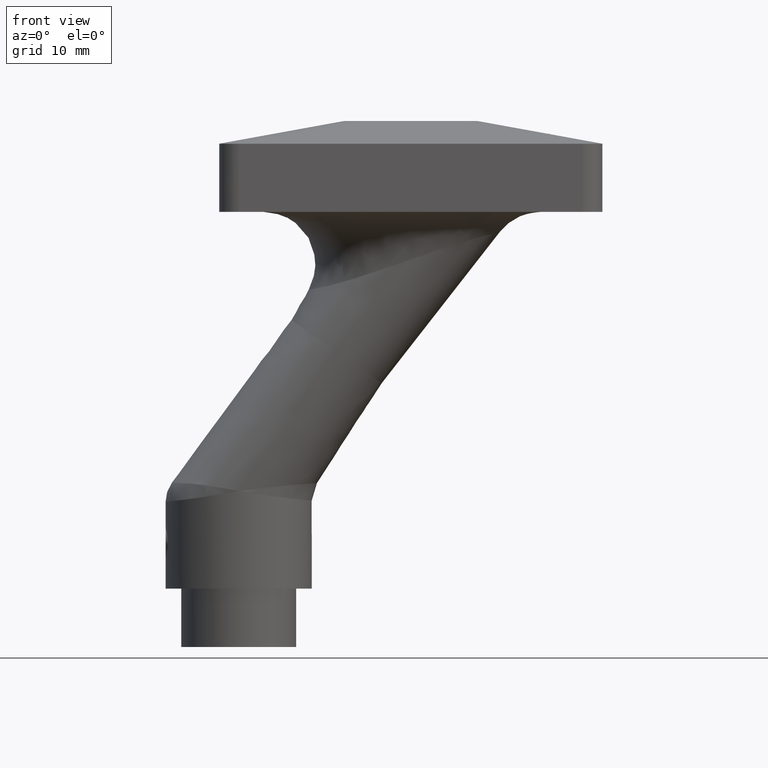
[diagram: clean part render]
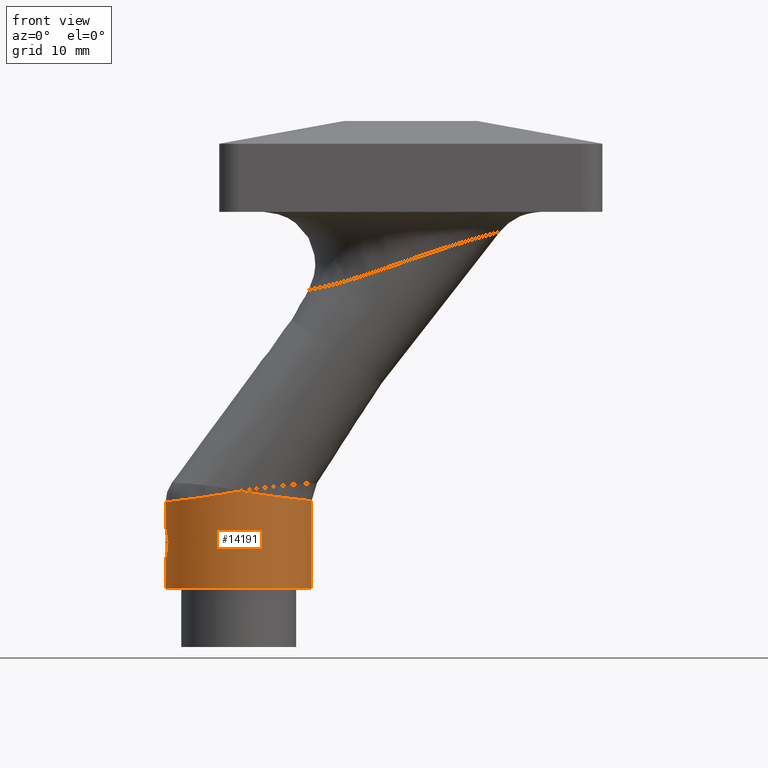
[diagram: same view with one face highlighted and labeled with its STEP entity id]
A machine part, front view. The second image highlights one B-rep face of the part: STEP entity #14191.
In plain terms, the highlighted cylindrical surface (bore or boss wall) has radius 11.25 mm, axis along (0, 0, -1).
Its self-contained STEP definition (entity closure, byte-faithful):
#56 = CARTESIAN_POINT ( 'NONE',  ( -37.68075659520788889, 1.253745034708664052, -48.83095398390207720 ) ) ;
#230 = CARTESIAN_POINT ( 'NONE',  ( -26.58799601209620889, -11.25002030026135103, -43.01586588406971856 ) ) ;
#253 = CARTESIAN_POINT ( 'NONE',  ( -25.58216729560727742, 11.21397373183285495, -43.13660839719678108 ) ) ;
#359 = CARTESIAN_POINT ( 'NONE',  ( -37.64657759560685690, -1.539577063958007974, -49.00371243763353846 ) ) ;
#366 = CARTESIAN_POINT ( 'NONE',  ( -23.59614004035501367, -10.89316419302977401, -43.42886566051410568 ) ) ;
#420 = CARTESIAN_POINT ( 'NONE',  ( -37.57326254379513841, -1.988444917141694468, -49.47589345661070581 ) ) ;
#425 = CARTESIAN_POINT ( 'NONE',  ( -15.62026678717410810, 2.957028310466824461, -44.43805212797568771 ) ) ;
#463 = CARTESIAN_POINT ( 'NONE',  ( -36.60459673414103321, 5.000754288888439980, -44.51267905802065172 ) ) ;
#479 = CARTESIAN_POINT ( 'NONE',  ( -15.24926391848091711, -0.7351613917972392720, -44.47769005091761585 ) ) ;
#515 = CARTESIAN_POINT ( 'NONE',  ( -30.45335659545865070, 10.53881190209387952, -43.67843766857333065 ) ) ;
#538 = CARTESIAN_POINT ( 'NONE',  ( -22.91557309642571028, 10.68927373741837883, -43.52476940037698228 ) ) ;
#577 = CARTESIAN_POINT ( 'NONE',  ( -34.93931663775671836, -7.475553840231445868, -44.31822588875963476 ) ) ;
#687 = VERTEX_POINT ( 'NONE', #6681 ) ;
#690 = CARTESIAN_POINT ( 'NONE',  ( -33.87595355894849547, -8.502611458324700777, -44.18142745480246703 ) ) ;
#1114 = CARTESIAN_POINT ( 'NONE',  ( -26.50000000000000711, 0.000000000000000000, -58.00000000000000000 ) ) ;
#1178 = B_SPLINE_CURVE_WITH_KNOTS ( 'NONE', 3,
 ( #11539, #14213, #15501, #5770, #7249, #253, #11483, #12869, #14276, #538, #4830, #11596, #11762, #4599, #17325, #14611, #6235, #14500, #3353, #10177, #3176, #425, #6176, #10401, #3295, #10345, #479, #12992, #8985, #15964, #1766, #3234, #15854, #17384, #14388, #10228, #16021, #7650, #1999, #6009, #11818, #7592, #17443, #366, #1825, #11654, #1942, #8921, #7481, #15796, #6114, #3413, #8869 ),
 .UNSPECIFIED., .F., .F.,
 ( 4, 2, 1, 2, 2, 2, 2, 2, 2, 2, 2, 2, 2, 2, 2, 2, 2, 2, 2, 2, 2, 2, 2, 2, 2, 2, 4 ),
 ( -3.937414685807313284E-05, 0.0002351514313479150810, 0.0005096770095539032881, 0.001058728165965872221, 0.002156830478789810955, 0.004353035104437684086, 0.006549239730085557216, 0.007647342042909500287, 0.008745444355733442490, 0.01094164898138131649, 0.01313785360702918702, 0.01533405823267705928, 0.01643216054550099281, 0.01753026285832492981, 0.01972646748397280034, 0.02082456979679673040, 0.02192267210962066393, 0.02411887673526854139, 0.02631508136091641192, 0.02741318367374035239, 0.02851128598656428939, 0.03070749061221216339, 0.03290369523786003392, 0.03400179755068397786, 0.03455084870709595329, 0.03482537428530194101, 0.03509989986350793567 ),
 .UNSPECIFIED. ) ;
#1240 = ORIENTED_EDGE ( 'NONE', *, *, #4153, .F. ) ;
#1348 = CARTESIAN_POINT ( 'NONE',  ( -37.48674006475736320, 2.419735138580955347, -51.64936250849032007 ) ) ;
#1443 = FACE_OUTER_BOUND ( 'NONE', #6701, .T. ) ;
#1610 = CARTESIAN_POINT ( 'NONE',  ( -26.50000000000000711, 0.000000000000000000, -43.00000000000000000 ) ) ;
#1630 = CARTESIAN_POINT ( 'NONE',  ( -26.86401790152639180, -11.24448243017374693, -43.06437334906862446 ) ) ;
#1761 = CARTESIAN_POINT ( 'NONE',  ( -37.47238190204512165, -2.484028532149479496, -50.67391850911302953 ) ) ;
#1766 = CARTESIAN_POINT ( 'NONE',  ( -15.84169776112975825, -3.619465920377436863, -44.41624822221944413 ) ) ;
#1825 = CARTESIAN_POINT ( 'NONE',  ( -24.66822037685117408, -11.10584601066486599, -43.27231993850022462 ) ) ;
#1861 = CARTESIAN_POINT ( 'NONE',  ( -33.00587049424659369, -9.185299329459111206, -44.06338679204787923 ) ) ;
#1920 = CARTESIAN_POINT ( 'NONE',  ( -37.74957052561062909, -0.3862719649340466965, -44.63703151514683043 ) ) ;
#1942 = CARTESIAN_POINT ( 'NONE',  ( -25.57707192295873710, -11.21357904312848319, -43.13775037827159053 ) ) ;
#1982 = CARTESIAN_POINT ( 'NONE',  ( -35.40791420553161117, -6.910563225214472638, -44.37499185345798480 ) ) ;
#1999 = CARTESIAN_POINT ( 'NONE',  ( -19.67232502967480201, -8.948819689654499143, -43.96513494312738146 ) ) ;
#2033 = CARTESIAN_POINT ( 'NONE',  ( -37.67794013827155908, 1.469462512782714336, -44.62940878144023316 ) ) ;
#2086 = EDGE_CURVE ( 'NONE', #687, #687, #15422, .T. ) ;
#2731 = CARTESIAN_POINT ( 'NONE',  ( -37.57333972233147534, 1.987988175784518807, -52.52457346111491887 ) ) ;
#3052 = CARTESIAN_POINT ( 'NONE',  ( -37.52392198959429948, -2.244952111562316333, -52.11230619515626472 ) ) ;
#3176 = CARTESIAN_POINT ( 'NONE',  ( -15.83658169739675792, 3.660172870090232955, -44.41510499741705331 ) ) ;
#3215 = CARTESIAN_POINT ( 'NONE',  ( -34.69707389930479025, 7.713972579947069974, -44.28579643036877656 ) ) ;
#3230 = CARTESIAN_POINT ( 'NONE',  ( -37.59177106496908749, -1.883776008447558326, -49.34840884542255424 ) ) ;
#3234 = CARTESIAN_POINT ( 'NONE',  ( -15.96786451558549658, -3.971748677838647712, -44.40282091487250682 ) ) ;
#3295 = CARTESIAN_POINT ( 'NONE',  ( -15.26926728597367244, 0.7560250582683490927, -44.47521263869046493 ) ) ;
#3333 = CARTESIAN_POINT ( 'NONE',  ( -32.09102877642342122, -9.789647381795036907, -43.93355108577264190 ) ) ;
#3353 = CARTESIAN_POINT ( 'NONE',  ( -16.76191516113042823, 5.681018418691528460, -44.31355568017183089 ) ) ;
#3390 = CARTESIAN_POINT ( 'NONE',  ( -35.64001099715863319, 6.569556731911585068, -44.40107694031379992 ) ) ;
#3413 = CARTESIAN_POINT ( 'NONE',  ( -26.40694965745311151, -11.24997913212934897, -43.01360129326869242 ) ) ;
#3450 = CARTESIAN_POINT ( 'NONE',  ( -33.34789408235698005, 8.956460699475433884, -44.11014418023524541 ) ) ;
#3459 = VERTEX_POINT ( 'NONE', #6076 ) ;
#4099 = CARTESIAN_POINT ( 'NONE',  ( -37.75000000000001421, -2.303929616531696922E-16, -48.50000000000001421 ) ) ;
#4104 = ORIENTED_EDGE ( 'NONE', *, *, #16789, .T. ) ;
#4153 = EDGE_CURVE ( 'NONE', #11260, #11260, #12971, .T. ) ;
#4292 = CARTESIAN_POINT ( 'NONE',  ( -37.64679644970392047, 1.526424675689793675, -52.98657497506663816 ) ) ;
#4356 = CARTESIAN_POINT ( 'NONE',  ( -37.53937646106689385, 2.168667089266101300, -52.25431426737048213 ) ) ;
#4540 = CARTESIAN_POINT ( 'NONE',  ( -37.69637680275558722, -1.107464029917603288, -53.24723807940604559 ) ) ;
#4599 = CARTESIAN_POINT ( 'NONE',  ( -19.68881417153165359, 8.961364230379690099, -43.96034986496109553 ) ) ;
#4642 = CARTESIAN_POINT ( 'NONE',  ( -37.73059063981987293, -0.7581254405964665821, -44.63507789050913033 ) ) ;
#4653 = CARTESIAN_POINT ( 'NONE',  ( -37.68309954846475307, -1.261703566742904625, -48.81728812919127591 ) ) ;
#4688 = CARTESIAN_POINT ( 'NONE',  ( -36.22100976958144258, -5.674744764149395770, -44.46997190512419706 ) ) ;
#4746 = CARTESIAN_POINT ( 'NONE',  ( -37.15717827437402576, 3.622836015352560946, -44.57353265851101298 ) ) ;
#4805 = CARTESIAN_POINT ( 'NONE',  ( -35.41717406239238386, 6.869066732656741614, -44.37445044623481039 ) ) ;
#4830 = CARTESIAN_POINT ( 'NONE',  ( -21.54799188290501633, 10.12848976248457689, -43.71490185306364396 ) ) ;
#5261 = ORIENTED_EDGE ( 'NONE', *, *, #14512, .T. ) ;
#5515 = CARTESIAN_POINT ( 'NONE',  ( -37.53672650785753717, 2.183904806605754256, -49.74044142872117646 ) ) ;
#5572 = CARTESIAN_POINT ( 'NONE',  ( -37.68047795284339685, 1.256167237142044923, -53.16760150729938061 ) ) ;
#5702 = CARTESIAN_POINT ( 'NONE',  ( -37.73224575438071327, 0.6519598570571407681, -53.41905625175661498 ) ) ;
#5762 = CARTESIAN_POINT ( 'NONE',  ( -37.62847907448755791, 1.653175029519442285, -49.11760231332894477 ) ) ;
#5770 = CARTESIAN_POINT ( 'NONE',  ( -26.13006095518148442, 11.24429138543998619, -43.05498504087139366 ) ) ;
#5823 = CARTESIAN_POINT ( 'NONE',  ( -37.75000000000000711, -0.1657161672031449984, -48.50000000000001421 ) ) ;
#5969 = DIRECTION ( 'NONE',  ( -1.000000000000000000, 0.000000000000000000, 0.000000000000000000 ) ) ;
#6009 = CARTESIAN_POINT ( 'NONE',  ( -19.96763417237547600, -9.166489074497082612, -43.92704812923691549 ) ) ;
#6045 = CARTESIAN_POINT ( 'NONE',  ( -28.32748180642096969, 11.10666148670805242, -43.32093914003816337 ) ) ;
#6059 = CARTESIAN_POINT ( 'NONE',  ( -37.48419476004180950, -2.434466992371082661, -51.65689472750188571 ) ) ;
#6064 = ORIENTED_EDGE ( 'NONE', *, *, #2086, .F. ) ;
#6076 = CARTESIAN_POINT ( 'NONE',  ( -26.49744186247852085, -11.24999970915255787, -43.00000000000000000 ) ) ;
#6097 = CARTESIAN_POINT ( 'NONE',  ( -32.11366058624965802, 9.777456542824152663, -43.93520878460281409 ) ) ;
#6114 = CARTESIAN_POINT ( 'NONE',  ( -26.31372860708166783, -11.24883578088096492, -43.02760072011336234 ) ) ;
#6158 = CARTESIAN_POINT ( 'NONE',  ( -33.91618264083517431, 8.491307846093590683, -44.18592636950976527 ) ) ;
#6176 = CARTESIAN_POINT ( 'NONE',  ( -15.39973109540211027, 1.866563164859262880, -44.46139367190538394 ) ) ;
#6235 = CARTESIAN_POINT ( 'NONE',  ( -18.05286347208557629, 7.466853264604533358, -44.16377745652111741 ) ) ;
#6270 = CARTESIAN_POINT ( 'NONE',  ( -37.60003416204072124, -1.868261779885759699, -44.62143648069104529 ) ) ;
#6455 = CYLINDRICAL_SURFACE ( 'NONE', #9000, 11.25000000000001421 ) ;
#6492 = CARTESIAN_POINT ( 'NONE',  ( -26.49740553563398748, 11.24999970083354839, -43.00000000000000711 ) ) ;
#6681 = CARTESIAN_POINT ( 'NONE',  ( -37.75000000000002132, 0.000000000000000000, -48.50000000000000711 ) ) ;
#6701 = EDGE_LOOP ( 'NONE', ( #1240 ) ) ;
#6831 = B_SPLINE_CURVE_WITH_KNOTS ( 'NONE', 3,
 ( #8625, #230, #15716, #1630, #16057, #15946, #9081, #8902, #11742, #8849, #13204, #13028, #7570, #3333, #1861, #13086, #690, #10327, #577, #1982, #7518, #4688, #13145, #15832, #14480, #7460, #6270, #15890, #4642, #1920, #7690, #2033, #16002, #17302, #4746, #11797, #463, #17239, #3390, #4805, #14536, #3215, #6158, #3450, #6097, #17484, #515, #14424, #14651, #10505, #6045, #17361, #10268, #11688, #8964, #11853, #10378 ),
 .UNSPECIFIED., .F., .F.,
 ( 4, 2, 1, 2, 2, 2, 2, 2, 2, 2, 2, 2, 2, 2, 2, 2, 2, 2, 2, 2, 2, 2, 2, 2, 2, 2, 2, 2, 4 ),
 ( -2.587528950332370039E-05, 0.0002499252393821553911, 0.0005257257682676344046, 0.001077326826038596010, 0.002180528941580519870, 0.003283731057122443297, 0.004386933172664365423, 0.006593337403748213144, 0.007696539519290126162, 0.008799741634832039180, 0.01100614586591584960, 0.01210934798145775482, 0.01321255009699965656, 0.01541895432808345658, 0.01652215644362535832, 0.01762535855916726180, 0.01983176279025106181, 0.02093496490579296182, 0.02203816702133486530, 0.02424457125241866878, 0.02534777336796056532, 0.02645097548350245839, 0.02865737971458624106, 0.03086378394567002373, 0.03196698606121191333, 0.03307018817675379946, 0.03417339029229569253, 0.03472499135006662518, 0.03527659240783756478 ),
 .UNSPECIFIED. ) ;
#6930 = CARTESIAN_POINT ( 'NONE',  ( -37.75000000000002132, 0.1657161672031357003, -48.50000000000001421 ) ) ;
#6989 = CARTESIAN_POINT ( 'NONE',  ( -37.59173650917570342, 1.884058541853640190, -52.65143626716205461 ) ) ;
#7016 = DIRECTION ( 'NONE',  ( 0.000000000000000000, 0.000000000000000000, -1.000000000000000000 ) ) ;
#7115 = CARTESIAN_POINT ( 'NONE',  ( -37.74998490963172770, 0.1644691035418998637, -53.49993209333716493 ) ) ;
#7249 = CARTESIAN_POINT ( 'NONE',  ( -25.85513723581858869, 11.23411476709549284, -43.09603706259993317 ) ) ;
#7307 = CARTESIAN_POINT ( 'NONE',  ( -37.59213666496045647, -1.881659315131578580, -52.65406099378084548 ) ) ;
#7421 = CARTESIAN_POINT ( 'NONE',  ( -37.73493316287531485, -0.6558179420409238070, -53.43436338274979391 ) ) ;
#7460 = CARTESIAN_POINT ( 'NONE',  ( -37.37827727940891975, -2.963144501860617730, -44.59798481391889169 ) ) ;
#7477 = CARTESIAN_POINT ( 'NONE',  ( -37.52351656771428168, -2.246924068779898143, -49.89183796041853469 ) ) ;
#7481 = CARTESIAN_POINT ( 'NONE',  ( -26.03720196527531527, -11.24085519363162966, -43.06904394251615287 ) ) ;
#7518 = CARTESIAN_POINT ( 'NONE',  ( -36.02757933009449687, -5.993647637662388838, -44.44772518979065978 ) ) ;
#7570 = CARTESIAN_POINT ( 'NONE',  ( -31.44610540244175567, -10.13110290342210718, -43.83722442322081747 ) ) ;
#7592 = CARTESIAN_POINT ( 'NONE',  ( -21.52919732205071313, -10.11931277237178506, -43.71955857782110400 ) ) ;
#7650 = CARTESIAN_POINT ( 'NONE',  ( -19.10087774993497689, -8.482423549136516527, -44.03763272104424686 ) ) ;
#7690 = CARTESIAN_POINT ( 'NONE',  ( -37.75083738379053244, 0.7343911286410290673, -44.63706600273000902 ) ) ;
#8190 = EDGE_LOOP ( 'NONE', ( #6064 ) ) ;
#8271 = AXIS2_PLACEMENT_3D ( 'NONE', #1114, #15518, #16801 ) ;
#8333 = CARTESIAN_POINT ( 'NONE',  ( -37.49745845293843871, 2.371176001329940330, -50.19129339657925470 ) ) ;
#8397 = CARTESIAN_POINT ( 'NONE',  ( -37.46868282718008203, 2.500099407467267998, -51.16208300218305993 ) ) ;
#8451 = CARTESIAN_POINT ( 'NONE',  ( -37.74634296766220132, 0.3285616872426019297, -48.51631321845164280 ) ) ;
#8625 = CARTESIAN_POINT ( 'NONE',  ( -26.49744186247852085, -11.24999970915255787, -43.00000000000000000 ) ) ;
#8637 = CARTESIAN_POINT ( 'NONE',  ( -37.49727420592472527, -2.372034006762276270, -50.19368396543599431 ) ) ;
#8692 = CARTESIAN_POINT ( 'NONE',  ( -37.46868186375813536, -2.500103634466104285, -50.83656737869828390 ) ) ;
#8753 = CARTESIAN_POINT ( 'NONE',  ( -37.73226959465379338, -0.6516663803913396169, -48.58083251576626793 ) ) ;
#8849 = CARTESIAN_POINT ( 'NONE',  ( -29.37635119099201120, -10.88221448524924106, -43.50227812460062893 ) ) ;
#8869 = CARTESIAN_POINT ( 'NONE',  ( -26.49744186247852085, -11.24999970915255787, -43.00000000000000000 ) ) ;
#8884 = FACE_OUTER_BOUND ( 'NONE', #13273, .T. ) ;
#8902 = CARTESIAN_POINT ( 'NONE',  ( -28.31184504468579632, -11.10905894770588809, -43.31921484258081279 ) ) ;
#8921 = CARTESIAN_POINT ( 'NONE',  ( -25.76083038512884116, -11.22720616631809243, -43.11036252621535425 ) ) ;
#8964 = CARTESIAN_POINT ( 'NONE',  ( -26.86468316865505201, 11.24558658789049481, -43.06425235065912460 ) ) ;
#8985 = CARTESIAN_POINT ( 'NONE',  ( -15.53710546863395336, -2.552028083967936123, -44.44823484829729665 ) ) ;
#9000 = AXIS2_PLACEMENT_3D ( 'NONE', #1610, #7016, #5969 ) ;
#9081 = CARTESIAN_POINT ( 'NONE',  ( -27.95315920280170374, -11.16167102460963534, -43.25629137087848619 ) ) ;
#9110 = FACE_BOUND ( 'NONE', #8190, .T. ) ;
#9498 = CARTESIAN_POINT ( 'NONE',  ( -37.75000000000002132, 0.000000000000000000, -58.00000000000000000 ) ) ;
#9734 = CARTESIAN_POINT ( 'NONE',  ( -37.49720083388461234, 2.372382254558741188, -51.80545136783706539 ) ) ;
#9795 = CARTESIAN_POINT ( 'NONE',  ( -37.72198391363001235, 0.8077998364143231802, -53.37153692823934392 ) ) ;
#9855 = CARTESIAN_POINT ( 'NONE',  ( -37.64698342713514023, 1.525108235016642277, -49.01236771421590532 ) ) ;
#10112 = CARTESIAN_POINT ( 'NONE',  ( -37.72177456111424476, -0.8105883972958005668, -48.62945613824705049 ) ) ;
#10169 = CARTESIAN_POINT ( 'NONE',  ( -37.75000000000001421, -2.303929616531696922E-16, -48.50000000000001421 ) ) ;
#10177 = CARTESIAN_POINT ( 'NONE',  ( -16.40504457734681409, 5.019684287869438322, -44.35313534764622290 ) ) ;
#10228 = CARTESIAN_POINT ( 'NONE',  ( -18.03922836990364331, -7.451351733744624006, -44.16830254242273668 ) ) ;
#10268 = CARTESIAN_POINT ( 'NONE',  ( -27.41455607878479839, 11.21426906843264781, -43.16087392762361929 ) ) ;
#10327 = CARTESIAN_POINT ( 'NONE',  ( -34.15353049002730046, -8.253595499589964746, -44.21773911296649828 ) ) ;
#10345 = CARTESIAN_POINT ( 'NONE',  ( -15.25037637221502074, 0.3843493140076733039, -44.47726236580422210 ) ) ;
#10378 = CARTESIAN_POINT ( 'NONE',  ( -26.49740553563398748, 11.24999970083354839, -43.00000000000000711 ) ) ;
#10401 = CARTESIAN_POINT ( 'NONE',  ( -15.34376062669475260, 1.496413789078539391, -44.46729775470961954 ) ) ;
#10505 = CARTESIAN_POINT ( 'NONE',  ( -29.04861397956051405, 10.96367574841176307, -43.44523645905255194 ) ) ;
#11165 = CARTESIAN_POINT ( 'NONE',  ( -37.52356703356817746, 2.246685024423049182, -52.10876321580805381 ) ) ;
#11260 = VERTEX_POINT ( 'NONE', #9498 ) ;
#11351 = CARTESIAN_POINT ( 'NONE',  ( -37.73242054340787632, 0.6487770531060200740, -48.58013613057985935 ) ) ;
#11483 = CARTESIAN_POINT ( 'NONE',  ( -25.03878083166675594, 11.16063768196313788, -43.21707896293258955 ) ) ;
#11539 = CARTESIAN_POINT ( 'NONE',  ( -26.49740553563398748, 11.24999970083354839, -43.00000000000000711 ) ) ;
#11596 = CARTESIAN_POINT ( 'NONE',  ( -20.89907700089060327, 9.784021128703042081, -43.80248679753344732 ) ) ;
#11654 = CARTESIAN_POINT ( 'NONE',  ( -25.02940752567524285, -11.15950099878953239, -43.21907991422859396 ) ) ;
#11688 = CARTESIAN_POINT ( 'NONE',  ( -27.23146107652563686, 11.22769683473733693, -43.12866859479081683 ) ) ;
#11742 = CARTESIAN_POINT ( 'NONE',  ( -29.02344094996703205, -10.96933083381052221, -43.44220890099883547 ) ) ;
#11762 = CARTESIAN_POINT ( 'NONE',  ( -19.98434714352624653, 9.178371033366461873, -43.92228588905261688 ) ) ;
#11797 = CARTESIAN_POINT ( 'NONE',  ( -37.03068563609856767, 3.975442074540880277, -44.55975108442338239 ) ) ;
#11818 = CARTESIAN_POINT ( 'NONE',  ( -20.88160206659159357, -9.774016866009374027, -43.80715148692287642 ) ) ;
#11853 = CARTESIAN_POINT ( 'NONE',  ( -26.67853362843604614, 11.25004147242419172, -43.03161858922820926 ) ) ;
#12548 = CARTESIAN_POINT ( 'NONE',  ( -37.62865486586512986, 1.652070293470875972, -52.88350260925245294 ) ) ;
#12682 = CARTESIAN_POINT ( 'NONE',  ( -37.46872835362863441, 2.499899660945659630, -50.83486480684410935 ) ) ;
#12748 = CARTESIAN_POINT ( 'NONE',  ( -37.69610041944577716, 1.110351856294271133, -48.75412702775751228 ) ) ;
#12858 = CARTESIAN_POINT ( 'NONE',  ( -37.53906813857502556, -2.170260625874348204, -49.74828806832875472 ) ) ;
#12869 = CARTESIAN_POINT ( 'NONE',  ( -24.67992155757657713, 11.10770541093270047, -43.26982977963399435 ) ) ;
#12971 = CIRCLE ( 'NONE', #8271, 11.25000000000001421 ) ;
#12985 = CARTESIAN_POINT ( 'NONE',  ( -37.74634125745841118, -0.3291772153493195407, -48.51631669712076445 ) ) ;
#12992 = CARTESIAN_POINT ( 'NONE',  ( -15.32210131146204724, -1.469250250177829287, -44.47042792044856441 ) ) ;
#13028 = CARTESIAN_POINT ( 'NONE',  ( -30.42548058161122881, -10.54932596786833976, -43.67556370884894079 ) ) ;
#13041 = CARTESIAN_POINT ( 'NONE',  ( -37.68077620924341176, -1.253597507572366210, -53.16915423396351770 ) ) ;
#13086 = CARTESIAN_POINT ( 'NONE',  ( -33.30199756851563819, -8.968384558709923127, -44.10422880692946279 ) ) ;
#13145 = CARTESIAN_POINT ( 'NONE',  ( -36.57450516317732081, -5.020468583275102148, -44.51003944455070638 ) ) ;
#13204 = CARTESIAN_POINT ( 'NONE',  ( -30.07637754261467578, -10.67265252641399087, -43.61879820928005103 ) ) ;
#13273 = EDGE_LOOP ( 'NONE', ( #4104, #5261 ) ) ;
#13898 = CARTESIAN_POINT ( 'NONE',  ( -37.57362823314898748, 1.997847469689024713, -49.46239133590433568 ) ) ;
#13960 = CARTESIAN_POINT ( 'NONE',  ( -37.48680036089897527, 2.419464280192384020, -50.34938327033957961 ) ) ;
#14086 = CARTESIAN_POINT ( 'NONE',  ( -37.69615427122248263, 1.109771628970843027, -53.24613777610489507 ) ) ;
#14191 = ADVANCED_FACE ( 'NONE', ( #9110, #8884, #1443 ), #6455, .T. ) ;
#14213 = CARTESIAN_POINT ( 'NONE',  ( -26.40690797968550640, 11.24997883037219104, -43.01356564793444903 ) ) ;
#14271 = CARTESIAN_POINT ( 'NONE',  ( -37.53952387559210990, -2.167922777605697071, -52.25561400835626102 ) ) ;
#14276 = CARTESIAN_POINT ( 'NONE',  ( -23.61336168015420967, 10.89747857721910407, -43.42514494134814385 ) ) ;
#14388 = CARTESIAN_POINT ( 'NONE',  ( -17.57247102463930588, -6.885076707867248125, -44.22328917410852256 ) ) ;
#14424 = CARTESIAN_POINT ( 'NONE',  ( -30.10928119542806058, 10.66161794540273533, -43.62263740821083502 ) ) ;
#14438 = CARTESIAN_POINT ( 'NONE',  ( -37.57352674572248930, -1.986952938848411065, -52.52593372282145623 ) ) ;
#14480 = CARTESIAN_POINT ( 'NONE',  ( -37.16089776482175466, -3.667516003279461589, -44.57480878433833738 ) ) ;
#14500 = CARTESIAN_POINT ( 'NONE',  ( -17.58513956377561271, 6.901415072662622663, -44.21894423145739239 ) ) ;
#14512 = EDGE_CURVE ( 'NONE', #17295, #3459, #1178, .T. ) ;
#14536 = CARTESIAN_POINT ( 'NONE',  ( -34.94536335978783370, 7.441499093452095259, -44.31676573135460018 ) ) ;
#14611 = CARTESIAN_POINT ( 'NONE',  ( -18.83941130619858129, 8.247075794697924067, -44.06739018399785124 ) ) ;
#14651 = CARTESIAN_POINT ( 'NONE',  ( -29.40721191480050933, 10.87405751519855812, -43.50609682942302214 ) ) ;
#15422 = B_SPLINE_CURVE_WITH_KNOTS ( 'NONE', 3,
 ( #4099, #6930, #8451, #11351, #16713, #12748, #56, #9855, #5762, #13898, #5515, #8333, #13960, #18141, #12682, #8397, #18199, #1348, #9734, #11165, #4356, #2731, #6989, #12548, #4292, #5572, #14086, #9795, #5702, #15492, #7115, #16908, #7421, #4540, #13041, #17137, #17192, #7307, #14438, #14271, #3052, #6059, #15672, #8692, #1761, #17082, #8637, #7477, #12858, #420, #3230, #359, #4653, #10112, #8753, #12985, #5823, #10169 ),
 .UNSPECIFIED., .T., .F.,
 ( 4, 2, 2, 2, 2, 2, 2, 2, 2, 2, 2, 2, 2, 2, 2, 2, 2, 2, 2, 2, 2, 2, 2, 2, 2, 2, 2, 2, 4 ),
 ( 0.000000000000000000, 0.0004899773506260333630, 0.0009799547012520667261, 0.001469932051878099655, 0.001959909402504132585, 0.002939864103756198443, 0.003429841454382240914, 0.003919818805008283384, 0.004409796155634326288, 0.004899773506260367457, 0.005389750856886410361, 0.005879728207512451531, 0.006369705558138494435, 0.006859682908764536471, 0.007349660259390577641, 0.007839637610016620545, 0.008819592311268706353, 0.009309569661894749257, 0.009799547012520793896, 0.01028952436314683853, 0.01077950171377288144, 0.01175945641502498633, 0.01224943376565104138, 0.01273941111627709295, 0.01322938846690314453, 0.01371936581752919784, 0.01469932051878131835, 0.01518929786940737860, 0.01567927522003343885 ),
 .UNSPECIFIED. ) ;
#15492 = CARTESIAN_POINT ( 'NONE',  ( -37.74629801262027229, 0.3304199651214196343, -53.48348695406797049 ) ) ;
#15501 = CARTESIAN_POINT ( 'NONE',  ( -26.31378355748885411, 11.24883403264976778, -43.02751279117750016 ) ) ;
#15518 = DIRECTION ( 'NONE',  ( 0.000000000000000000, 0.000000000000000000, -1.000000000000000000 ) ) ;
#15672 = CARTESIAN_POINT ( 'NONE',  ( -37.46875306558455065, -2.499791237655260900, -51.33159823167008540 ) ) ;
#15716 = CARTESIAN_POINT ( 'NONE',  ( -26.68083239077579094, -11.24891967264252912, -43.03216193676433932 ) ) ;
#15796 = CARTESIAN_POINT ( 'NONE',  ( -26.12935672846347046, -11.24427085329734766, -43.05524535765215433 ) ) ;
#15832 = CARTESIAN_POINT ( 'NONE',  ( -36.73382153265144012, -4.686910019875913491, -44.52778096626013848 ) ) ;
#15854 = CARTESIAN_POINT ( 'NONE',  ( -16.39557686045479556, -5.001579221098867656, -44.35661981778767426 ) ) ;
#15890 = CARTESIAN_POINT ( 'NONE',  ( -37.65596272315225690, -1.498471228461345506, -44.62729510524999910 ) ) ;
#15946 = CARTESIAN_POINT ( 'NONE',  ( -27.41060566482425287, -11.21455818370766799, -43.16072773529800344 ) ) ;
#15964 = CARTESIAN_POINT ( 'NONE',  ( -15.62653046611232277, -2.909914167032516374, -44.43893162677155573 ) ) ;
#16002 = CARTESIAN_POINT ( 'NONE',  ( -37.46250772497614889, 2.553765030822671811, -44.60644602655229818 ) ) ;
#16021 = CARTESIAN_POINT ( 'NONE',  ( -18.82379879917483123, -8.232535146211393595, -44.07215383130163389 ) ) ;
#16057 = CARTESIAN_POINT ( 'NONE',  ( -27.13819446979091055, -11.23448198527615460, -43.11265739815154774 ) ) ;
#16713 = CARTESIAN_POINT ( 'NONE',  ( -37.72198468636769064, 0.8078400497740579889, -48.62845596578804219 ) ) ;
#16789 = EDGE_CURVE ( 'NONE', #3459, #17295, #6831, .T. ) ;
#16801 = DIRECTION ( 'NONE',  ( -1.000000000000000000, 0.000000000000000000, 0.000000000000000000 ) ) ;
#16908 = CARTESIAN_POINT ( 'NONE',  ( -37.75003003777700172, -0.3258317985704577979, -53.50013517000743235 ) ) ;
#17082 = CARTESIAN_POINT ( 'NONE',  ( -37.48659114814032023, -2.420408497850060847, -50.35320050188104091 ) ) ;
#17137 = CARTESIAN_POINT ( 'NONE',  ( -37.64693857444580516, -1.525458544080228629, -52.98738849549001628 ) ) ;
#17192 = CARTESIAN_POINT ( 'NONE',  ( -37.62880720263774492, -1.650996008141700555, -52.88434915301515105 ) ) ;
#17239 = CARTESIAN_POINT ( 'NONE',  ( -36.25675630142044525, 5.649222353796553797, -44.47353376733916974 ) ) ;
#17295 = VERTEX_POINT ( 'NONE', #6492 ) ;
#17302 = CARTESIAN_POINT ( 'NONE',  ( -37.37288314095671637, 2.912181616765101566, -44.59685657742268461 ) ) ;
#17325 = CARTESIAN_POINT ( 'NONE',  ( -19.11695614328133885, 8.496408927848605686, -44.03282924624250683 ) ) ;
#17361 = CARTESIAN_POINT ( 'NONE',  ( -27.96301067375249971, 11.16051405672137697, -43.25717968419679949 ) ) ;
#17384 = CARTESIAN_POINT ( 'NONE',  ( -16.75094685501735370, -5.662244930716505920, -44.31742260242997844 ) ) ;
#17443 = CARTESIAN_POINT ( 'NONE',  ( -22.89661045929263494, -10.68292815973763510, -43.52899499873666400 ) ) ;
#17484 = CARTESIAN_POINT ( 'NONE',  ( -31.46505883986523600, 10.12141439873713011, -43.83837315130111278 ) ) ;
#18141 = CARTESIAN_POINT ( 'NONE',  ( -37.47241338788899867, 2.483894929068362956, -50.67231796907771013 ) ) ;
#18199 = CARTESIAN_POINT ( 'NONE',  ( -37.47244667669070139, 2.483745018839075058, -51.32832984894522355 ) ) ;